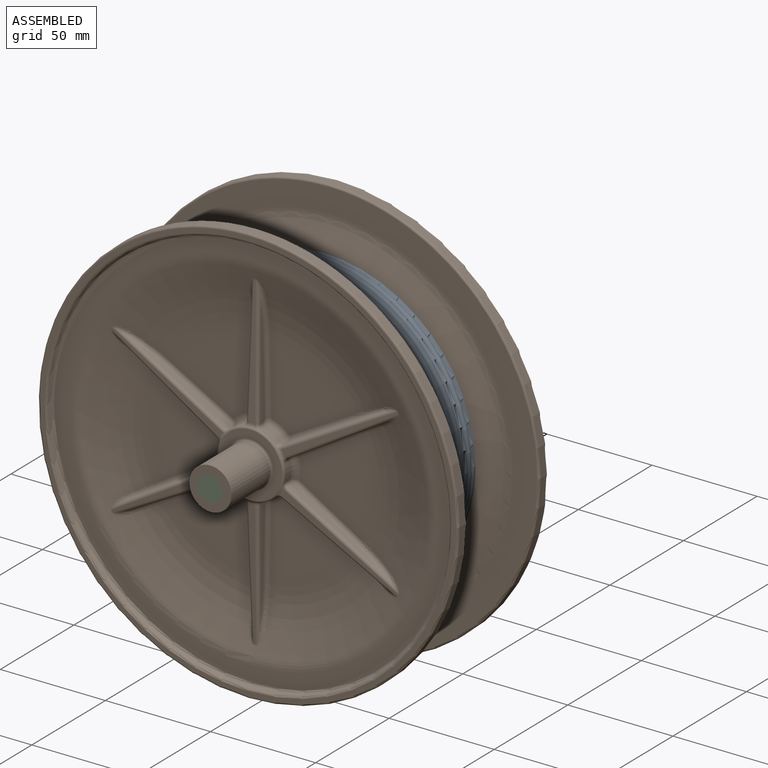
[diagram: assembled view]
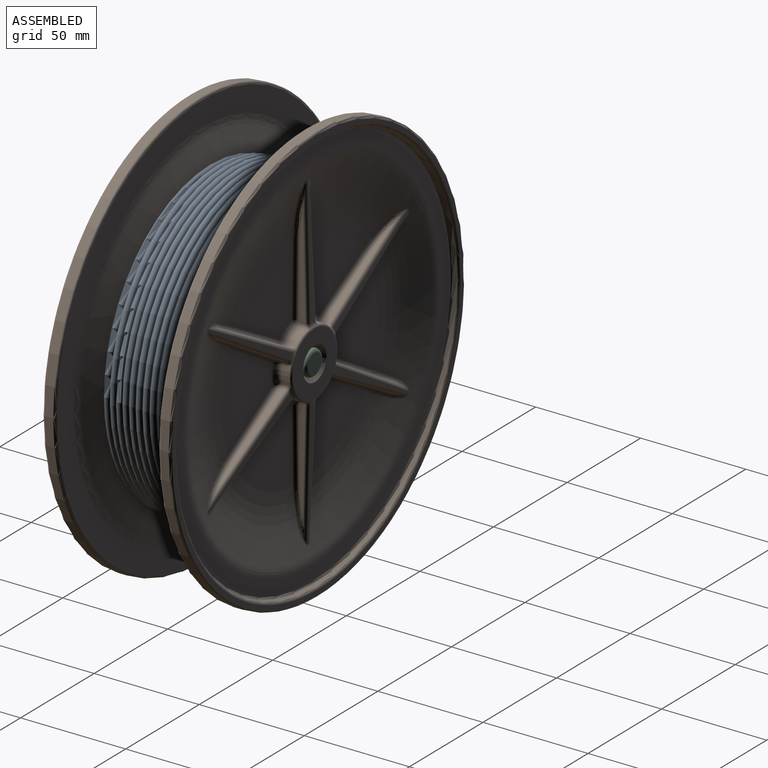
[diagram: assembled view, second angle]
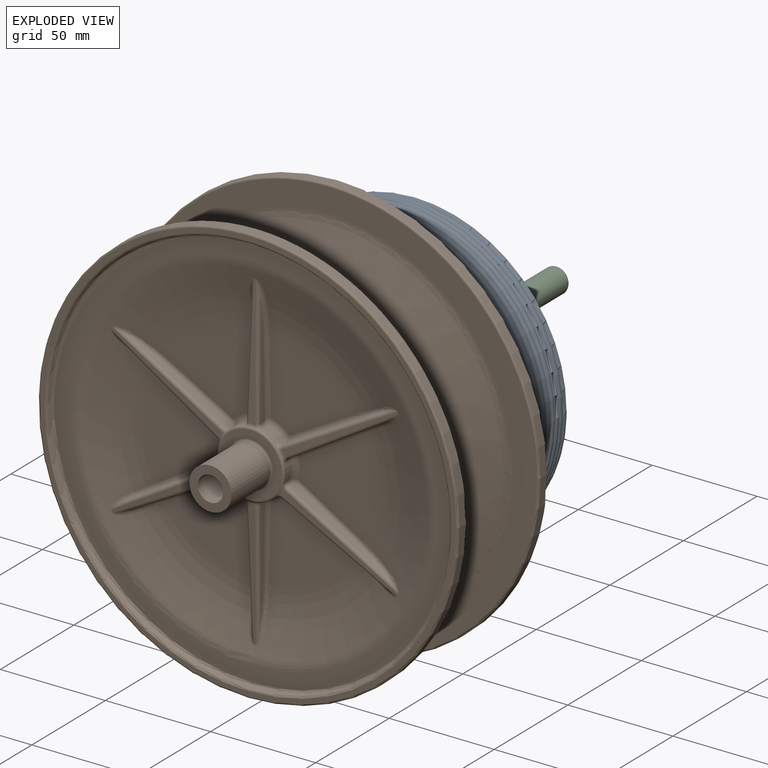
[diagram: exploded view]
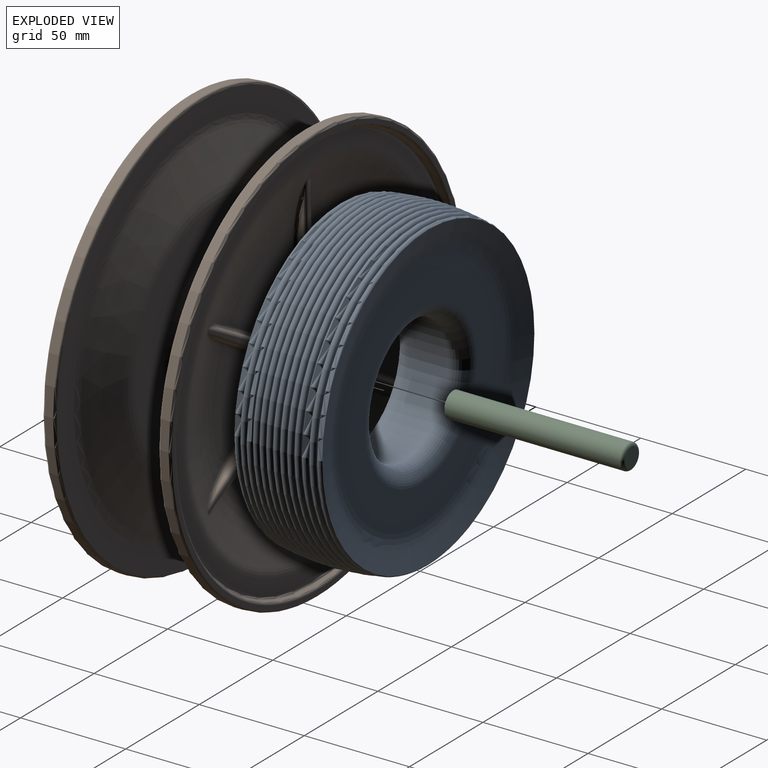
[diagram: exploded view, second angle]
ASSEMBLY  parts=3 mates=2
PART A: 22 faces, bbox 161.1x49.5x161.1 mm
  f0: torus R=70.99mm, axis (0,-1,0), area 1700.2mm2, adj f12,f14
  f1: torus R=70.99mm, axis (0,-1,0), area 1700.2mm2, adj f2,f17
  f2: torus R=71.53mm, axis (0,-1,0), area 2370.5mm2, adj f1,f3
  f3: torus R=71.97mm, axis (0,-1,0), area 2385.1mm2, adj f2,f4
  f4: torus R=72.32mm, axis (0,-1,0), area 2396.5mm2, adj f3,f5
  f5: torus R=72.57mm, axis (0,-1,0), area 2404.6mm2, adj f4,f6
  f6: torus R=72.71mm, axis (0,-1,0), area 2409.5mm2, adj f5,f7
  f7: torus R=72.76mm, axis (0,-1,0), area 2411.1mm2, adj f6,f8
  f8: torus R=72.71mm, axis (0,-1,0), area 2409.5mm2, adj f7,f9
  f9: torus R=72.57mm, axis (0,-1,0), area 2404.6mm2, adj f8,f10
  f10: torus R=72.32mm, axis (0,-1,0), area 2396.5mm2, adj f9,f11
  f11: torus R=71.97mm, axis (0,-1,0), area 2385.1mm2, adj f10,f12
  f12: torus R=71.53mm, axis (0,-1,0), area 2370.5mm2, adj f0,f11
  f13: torus R=55.98mm, axis (0,-1,0), area 2435.9mm2, adj f14,f15
  f14: cone r=62.45mm half-angle=75deg, axis (0,-1,0), area 4198.7mm2, adj f0,f13
  f15: plane 111.96x111.96mm, normal (0,-1,0), area 5308.3mm2, adj f13,f16
  f16: torus R=38mm, axis (0,-1,0), area 2598.2mm2, adj f15,f21
  f17: cone r=62.45mm half-angle=75deg, axis (0,1,0), area 4198.7mm2, adj f1,f18
  f18: torus R=55.98mm, axis (0,-1,0), area 2435.9mm2, adj f17,f19
  f19: plane 111.96x111.96mm, normal (0,1,0), area 5308.3mm2, adj f18,f20
  f20: torus R=38mm, axis (0,-1,0), area 2598.2mm2, adj f19,f21
  f21: cylinder r=30mm len=60mm, axis (0,-1,0), area 3581.4mm2, adj f16,f20
PART B: 366 faces, bbox 216.5x86.5x216.5 mm
  f0: cylinder r=16mm len=7.25mm, axis (0,-1,0), area 27.8mm2, adj f26,f123,f260,f262,f349,f351
  f1: cylinder r=16mm len=7.25mm, axis (0,-1,0), area 27.8mm2, adj f84,f123,f259,f261,f278,f280
  f2: cylinder r=16mm len=8.38mm, axis (0,-1,0), area 27.8mm2, adj f14,f123,f277,f279,f296,f298
  f3: cylinder r=16mm len=7.25mm, axis (0,-1,0), area 27.8mm2, adj f17,f123,f295,f297,f314,f316
  f4: cylinder r=16mm len=7.25mm, axis (0,-1,0), area 27.8mm2, adj f20,f123,f313,f315,f332,f334
  f5: cylinder r=16mm len=7.25mm, axis (0,-1,0), area 27.8mm2, adj f83,f121,f152,f154,f169,f171
  f6: cylinder r=16mm len=8.38mm, axis (0,-1,0), area 27.8mm2, adj f31,f121,f170,f172,f187,f189
  f7: cylinder r=16mm len=7.25mm, axis (0,-1,0), area 27.8mm2, adj f34,f121,f188,f190,f205,f207
  f8: cylinder r=16mm len=7.25mm, axis (0,-1,0), area 27.8mm2, adj f37,f121,f206,f208,f223,f225
  f9: cylinder r=16mm len=8.38mm, axis (0,-1,0), area 27.8mm2, adj f40,f121,f224,f226,f241,f243
  f10: cylinder r=16mm len=8.38mm, axis (0,-1,0), area 27.8mm2, adj f23,f123,f331,f333,f350,f352
  f11: cylinder r=16mm len=7.25mm, axis (0,-1,0), area 27.8mm2, adj f43,f121,f151,f153,f242,f244
  f12: plane 39.75x39.57mm, normal (0,1,0), area 982.6mm2, adj f13,f84,f265,f284
  f13: torus R=53.39mm, axis (0,-1,0), area 1045.1mm2, adj f12,f67,f267,f269,f286,f288
  f14: torus R=19mm, axis (0,-1,0), area 40.6mm2, adj f2,f15,f281,f300
  f15: plane 45.69x35.03mm, normal (0,1,0), area 982.6mm2, adj f14,f16,f283,f302
  f16: torus R=53.39mm, axis (0,-1,0), area 1045.1mm2, adj f15,f67,f285,f287,f304,f306
  f17: torus R=19mm, axis (0,-1,0), area 40.6mm2, adj f3,f18,f299,f318
  f18: plane 39.75x39.57mm, normal (0,1,0), area 982.6mm2, adj f17,f19,f301,f320
  f19: torus R=53.39mm, axis (0,-1,0), area 1045.1mm2, adj f18,f67,f303,f305,f322,f324
  f20: torus R=19mm, axis (0,-1,0), area 40.6mm2, adj f4,f21,f317,f336
  f21: plane 39.75x39.57mm, normal (0,1,0), area 982.6mm2, adj f20,f22,f319,f338
  f22: torus R=53.39mm, axis (0,-1,0), area 1045.1mm2, adj f21,f67,f321,f323,f340,f342
  f23: torus R=19mm, axis (0,-1,0), area 40.6mm2, adj f10,f24,f335,f354
  f24: plane 45.69x35.03mm, normal (0,1,0), area 982.6mm2, adj f23,f25,f337,f356
  f25: torus R=53.39mm, axis (0,-1,0), area 1045.1mm2, adj f24,f67,f339,f341,f358,f360
  f26: torus R=19mm, axis (0,-1,0), area 40.6mm2, adj f0,f27,f264,f353
  f27: plane 39.75x39.57mm, normal (0,1,0), area 982.6mm2, adj f26,f28,f266,f355
  f28: torus R=53.39mm, axis (0,-1,0), area 1045.1mm2, adj f27,f67,f268,f270,f357,f359
  f29: plane 45.69x35.03mm, normal (0,-1,0), area 982.6mm2, adj f30,f31,f176,f193
  f30: torus R=53.39mm, axis (0,-1,0), area 1045.1mm2, adj f29,f62,f178,f180,f195,f197
  f31: torus R=19mm, axis (0,-1,0), area 40.6mm2, adj f6,f29,f174,f191
  f32: plane 39.75x39.57mm, normal (0,-1,0), area 982.6mm2, adj f33,f34,f194,f211
  f33: torus R=53.39mm, axis (0,-1,0), area 1045.1mm2, adj f32,f62,f196,f198,f213,f215
  f34: torus R=19mm, axis (0,-1,0), area 40.6mm2, adj f7,f32,f192,f209
  f35: plane 39.75x39.57mm, normal (0,-1,0), area 982.6mm2, adj f36,f37,f212,f229
  f36: torus R=53.39mm, axis (0,-1,0), area 1045.1mm2, adj f35,f62,f214,f216,f231,f233
  f37: torus R=19mm, axis (0,-1,0), area 40.6mm2, adj f8,f35,f210,f227
  f38: plane 45.69x35.03mm, normal (0,-1,0), area 982.6mm2, adj f39,f40,f230,f247
  f39: torus R=53.39mm, axis (0,-1,0), area 1045.1mm2, adj f38,f62,f232,f234,f249,f251
  f40: torus R=19mm, axis (0,-1,0), area 40.6mm2, adj f9,f38,f228,f245
  f41: plane 39.75x39.57mm, normal (0,-1,0), area 982.6mm2, adj f42,f43,f157,f248
  f42: torus R=53.39mm, axis (0,-1,0), area 1045.1mm2, adj f41,f62,f159,f161,f250,f252
  f43: torus R=19mm, axis (0,-1,0), area 40.6mm2, adj f11,f41,f155,f246
  f44: plane 39.75x39.57mm, normal (0,-1,0), area 982.6mm2, adj f45,f83,f158,f175
  f45: torus R=53.39mm, axis (0,-1,0), area 1045.1mm2, adj f44,f62,f160,f162,f177,f179
  f46: cylinder r=30mm len=60mm, axis (0,-1,0), area 3581.4mm2, adj f69,f70
  f47: plane 111.96x111.96mm, normal (0,1,0), area 5308.3mm2, adj f48,f69
  f48: torus R=55.98mm, axis (0,-1,0), area 2435.9mm2, adj f47,f49
  f49: cone r=62.45mm half-angle=75deg, axis (0,-1,0), area 9985.5mm2, adj f48,f71
  f50: plane 198x198mm, normal (0,1,0), area 6809.5mm2, adj f71,f81
  f51: cylinder r=100mm len=200mm, axis (0,-1,0), area 2513.3mm2, adj f80,f81
  f52: cylinder r=100mm len=200mm, axis (0,-1,0), area 2513.3mm2, adj f77,f82
  f53: plane 198x198mm, normal (0,-1,0), area 6809.5mm2, adj f74,f82
  f54: cone r=62.45mm half-angle=75deg, axis (0,1,0), area 9985.5mm2, adj f55,f74
  f55: torus R=55.98mm, axis (0,-1,0), area 2435.9mm2, adj f54,f56
  f56: plane 111.96x111.96mm, normal (0,-1,0), area 5308.3mm2, adj f55,f70
  f57: cone r=95mm half-angle=20deg, axis (0,-1,0), area 1075.9mm2, adj f78,f79
  f58: plane 198x198mm, normal (0,-1,0), area 1358.1mm2, adj f79,f80
  f59: plane 20x20mm, normal (0,-1,0), area 201.1mm2, adj f60,f364
  f60: cylinder r=10mm len=26mm, axis (0,-1,0), area 1633.6mm2, adj f59,f122
  f61: plane 30x30mm, normal (0,-1,0), area 326.7mm2, adj f121,f122
  f62: cone r=71.51mm half-angle=75deg, axis (0,-1,0), area 5559.1mm2, adj f30,f33,f36,f39,f42,f45,f72,f163
  f63: plane 188.6x188.6mm, normal (0,-1,0), area 4171.5mm2, adj f72,f78
  f64: cone r=95mm half-angle=20deg, axis (0,1,0), area 1075.9mm2, adj f75,f76
  f65: plane 198x198mm, normal (0,1,0), area 1358.1mm2, adj f76,f77
  f66: plane 30x30mm, normal (0,1,0), area 505.8mm2, adj f123,f365
  f67: cone r=71.51mm half-angle=75deg, axis (0,1,0), area 5559mm2, adj f13,f16,f19,f22,f25,f28,f73,f271
  f68: plane 188.6x188.6mm, normal (0,1,0), area 4171.5mm2, adj f73,f75
  f69: torus R=38mm, axis (0,-1,0), area 2598.2mm2, adj f46,f47
  f70: torus R=38mm, axis (0,-1,0), area 2598.2mm2, adj f46,f56
  f71: torus R=87.37mm, axis (0,-1,0), area 2107.6mm2, adj f49,f50
  f72: torus R=86.97mm, axis (0,-1,0), area 2097.8mm2, adj f62,f63
  f73: torus R=86.97mm, axis (0,-1,0), area 2097.8mm2, adj f67,f68
  f74: torus R=87.37mm, axis (0,-1,0), area 2107.6mm2, adj f53,f54
  f75: torus R=94.3mm, axis (0,-1,0), area 728mm2, adj f64,f68
  f76: torus R=96.79mm, axis (0,1,0), area 738.9mm2, adj f64,f65
  f77: torus R=99mm, axis (0,1,0), area 983.4mm2, adj f52,f65
  f78: torus R=94.3mm, axis (0,-1,0), area 728mm2, adj f57,f63
  f79: torus R=96.79mm, axis (0,-1,0), area 738.9mm2, adj f57,f58
  f80: torus R=99mm, axis (0,-1,0), area 983.4mm2, adj f51,f58
  f81: torus R=99mm, axis (0,-1,0), area 983.4mm2, adj f50,f51
  f82: torus R=99mm, axis (0,-1,0), area 983.4mm2, adj f52,f53
  f83: torus R=19mm, axis (0,-1,0), area 40.6mm2, adj f5,f44,f156,f173
  f84: torus R=19mm, axis (0,-1,0), area 40.6mm2, adj f1,f12,f263,f282
  f85: plane 48.9x2.95mm, normal (-1,0,0.02), area 96.7mm2, adj f147,f153,f155,f157,f159
  f86: plane 48.89x2.95mm, normal (1,0,0.02), area 96.7mm2, adj f146,f154,f156,f158,f160
  f87: plane 61.22x2.96mm, normal (0,-1,0.03), area 115.2mm2, adj f146,f147,f148,f165
  f88: plane 41.92x25.19mm, normal (-0.52,0,-0.86), area 96.7mm2, adj f137,f243,f245,f247,f249
  f89: plane 42.77x23.71mm, normal (0.48,0,0.87), area 96.7mm2, adj f136,f244,f246,f248,f250
  f90: plane 53.96x32.24mm, normal (-0.03,-1,0.02), area 115.2mm2, adj f136,f137,f238,f255
  f91: plane 42.78x23.72mm, normal (0.48,0,-0.87), area 96.7mm2, adj f139,f225,f227,f229,f231
  f92: plane 41.92x25.19mm, normal (-0.52,0,0.86), area 96.7mm2, adj f138,f226,f228,f230,f232
  f93: plane 53.96x32.24mm, normal (-0.03,-1,-0.02), area 115.2mm2, adj f138,f139,f220,f237
  f94: plane 48.9x2.95mm, normal (1,0,-0.02), area 96.7mm2, adj f141,f207,f209,f211,f213
  f95: plane 48.89x2.95mm, normal (-1,0,-0.02), area 96.7mm2, adj f140,f208,f210,f212,f214
  f96: plane 61.22x2.96mm, normal (0,-1,-0.03), area 115.2mm2, adj f140,f141,f202,f219
  f97: plane 41.92x25.19mm, normal (0.52,0,0.86), area 96.7mm2, adj f143,f189,f191,f193,f195
  f98: plane 42.77x23.71mm, normal (-0.48,0,-0.87), area 96.7mm2, adj f142,f190,f192,f194,f196
  f99: plane 53.96x32.24mm, normal (0.03,-1,-0.02), area 115.2mm2, adj f142,f143,f184,f201
  f100: plane 42.78x23.72mm, normal (-0.48,0,0.87), area 96.7mm2, adj f145,f171,f173,f175,f177
  f101: plane 41.92x25.19mm, normal (0.52,0,-0.86), area 96.7mm2, adj f144,f172,f174,f176,f178
  f102: plane 53.96x32.24mm, normal (0.03,-1,0.02), area 115.2mm2, adj f144,f145,f166,f183
  f103: plane 48.89x2.95mm, normal (-1,0,0.02), area 96.7mm2, adj f135,f261,f263,f265,f267
  f104: plane 48.9x2.95mm, normal (1,0,0.02), area 96.7mm2, adj f134,f262,f264,f266,f268
  f105: plane 61.22x2.96mm, normal (0,1,0.03), area 115.2mm2, adj f134,f135,f256,f273
  f106: plane 42.77x23.71mm, normal (-0.48,0,0.87), area 96.7mm2, adj f125,f351,f353,f355,f357
  f107: plane 41.92x25.19mm, normal (0.52,0,-0.86), area 96.7mm2, adj f124,f352,f354,f356,f358
  f108: plane 53.96x32.24mm, normal (0.03,1,0.02), area 115.2mm2, adj f124,f125,f346,f363
  f109: plane 41.92x25.19mm, normal (0.52,0,0.86), area 96.7mm2, adj f127,f333,f335,f337,f339
  f110: plane 42.78x23.72mm, normal (-0.48,0,-0.87), area 96.7mm2, adj f126,f334,f336,f338,f340
  f111: plane 53.96x32.24mm, normal (0.03,1,-0.02), area 115.2mm2, adj f126,f127,f328,f345
  f112: plane 48.89x2.95mm, normal (1,0,-0.02), area 96.7mm2, adj f129,f315,f317,f319,f321
  f113: plane 48.9x2.95mm, normal (-1,0,-0.02), area 96.7mm2, adj f128,f316,f318,f320,f322
  f114: plane 61.22x2.96mm, normal (0,1,-0.03), area 115.2mm2, adj f128,f129,f310,f327
  f115: plane 42.77x23.71mm, normal (0.48,0,-0.87), area 96.7mm2, adj f131,f297,f299,f301,f303
  f116: plane 41.92x25.19mm, normal (-0.52,0,0.86), area 96.7mm2, adj f130,f298,f300,f302,f304
  f117: plane 53.96x32.24mm, normal (-0.03,1,-0.02), area 115.2mm2, adj f130,f131,f292,f309
  f118: plane 41.92x25.19mm, normal (-0.52,0,-0.86), area 96.7mm2, adj f133,f279,f281,f283,f285
  f119: plane 42.78x23.72mm, normal (0.48,0,0.87), area 96.7mm2, adj f132,f280,f282,f284,f286
  f120: plane 53.96x32.24mm, normal (-0.03,1,0.02), area 115.2mm2, adj f132,f133,f274,f291
  f121: torus R=15mm, axis (0,-1,0), area 126.3mm2, adj f5,f6,f7,f8,f9,f11,f61,f148
  f122: torus R=11mm, axis (0,-1,0), area 102.3mm2, adj f60,f61
  f123: torus R=15mm, axis (0,-1,0), area 126.3mm2, adj f0,f1,f2,f3,f4,f10,f66,f256
  f124: cylinder r=1.5mm len=53.21mm, axis (0.86,-0.03,0.51), area 133.8mm2, adj f107,f108,f348,f350,f360,f362
  f125: cylinder r=1.5mm len=54.32mm, axis (-0.87,0.03,-0.48), area 133.8mm2, adj f106,f108,f347,f349,f359,f361
  f126: cylinder r=1.5mm len=54.32mm, axis (0.87,-0.03,-0.48), area 133.8mm2, adj f110,f111,f330,f332,f342,f344
  f127: cylinder r=1.5mm len=53.21mm, axis (-0.86,0.03,0.51), area 133.8mm2, adj f109,f111,f329,f331,f341,f343
  f128: cylinder r=1.5mm len=61.25mm, axis (0.02,-0.03,-1), area 133.8mm2, adj f113,f114,f312,f314,f324,f326
  f129: cylinder r=1.5mm len=61.25mm, axis (0.02,0.03,1), area 133.8mm2, adj f112,f114,f311,f313,f323,f325
  f130: cylinder r=1.5mm len=53.21mm, axis (-0.86,-0.03,-0.51), area 133.8mm2, adj f116,f117,f294,f296,f306,f308
  f131: cylinder r=1.5mm len=54.32mm, axis (0.87,0.03,0.48), area 133.8mm2, adj f115,f117,f293,f295,f305,f307
  f132: cylinder r=1.5mm len=54.32mm, axis (-0.87,-0.03,0.48), area 133.8mm2, adj f119,f120,f276,f278,f288,f290
  f133: cylinder r=1.5mm len=53.21mm, axis (0.86,0.03,-0.51), area 133.8mm2, adj f118,f120,f275,f277,f287,f289
  f134: cylinder r=1.5mm len=61.25mm, axis (-0.02,-0.03,1), area 133.8mm2, adj f104,f105,f258,f260,f270,f272
  f135: cylinder r=1.5mm len=61.25mm, axis (-0.02,0.03,-1), area 133.8mm2, adj f103,f105,f257,f259,f269,f271
  f136: cylinder r=1.5mm len=54.32mm, axis (-0.87,0.03,0.48), area 133.8mm2, adj f89,f90,f240,f242,f252,f254
  f137: cylinder r=1.5mm len=53.21mm, axis (0.86,-0.03,-0.51), area 133.8mm2, adj f88,f90,f239,f241,f251,f253
  f138: cylinder r=1.5mm len=53.21mm, axis (-0.86,0.03,-0.51), area 133.8mm2, adj f92,f93,f222,f224,f234,f236
  f139: cylinder r=1.5mm len=54.32mm, axis (0.87,-0.03,0.48), area 133.8mm2, adj f91,f93,f221,f223,f233,f235
  f140: cylinder r=1.5mm len=61.25mm, axis (0.02,0.03,-1), area 133.8mm2, adj f95,f96,f204,f206,f216,f218
  f141: cylinder r=1.5mm len=61.25mm, axis (0.02,-0.03,1), area 133.8mm2, adj f94,f96,f203,f205,f215,f217
  f142: cylinder r=1.5mm len=54.32mm, axis (0.87,0.03,-0.48), area 133.8mm2, adj f98,f99,f186,f188,f198,f200
  f143: cylinder r=1.5mm len=53.21mm, axis (-0.86,-0.03,0.51), area 133.8mm2, adj f97,f99,f185,f187,f197,f199
  f144: cylinder r=1.5mm len=53.21mm, axis (0.86,0.03,0.51), area 133.8mm2, adj f101,f102,f168,f170,f180,f182
  f145: cylinder r=1.5mm len=54.32mm, axis (-0.87,-0.03,-0.48), area 133.8mm2, adj f100,f102,f167,f169,f179,f181
  f146: cylinder r=1.5mm len=61.25mm, axis (-0.02,0.03,1), area 133.8mm2, adj f86,f87,f150,f152,f162,f164
  f147: cylinder r=1.5mm len=61.25mm, axis (-0.02,-0.03,-1), area 133.8mm2, adj f85,f87,f149,f151,f161,f163
  f148: bspline ~5.51x1.74mm, area 4.7mm2, adj f87,f121,f149,f150
  f149: bspline ~3.63x1.97mm, area 4mm2, adj f121,f147,f148,f151
  f150: bspline ~3.63x1.97mm, area 4mm2, adj f121,f146,f148,f152
  f151: bspline ~2.57x1.99mm, area 2.7mm2, adj f11,f147,f149,f153
  f152: bspline ~2.6x2mm, area 2.7mm2, adj f5,f146,f150,f154
  f153: cylinder r=2mm len=1.95mm, axis (0,-1,0), area 5mm2, adj f11,f85,f151,f155
  f154: cylinder r=2mm len=1.95mm, axis (0,-1,0), area 5mm2, adj f5,f86,f152,f156
  f155: bspline ~3.65x3.22mm, area 9.6mm2, adj f43,f85,f153,f157
  f156: bspline ~3.7x3.65mm, area 9.6mm2, adj f83,f86,f154,f158
  f157: cylinder r=2mm len=34.91mm, axis (-0.02,0,-1), area 109.6mm2, adj f41,f85,f155,f159
  f158: cylinder r=2mm len=34.91mm, axis (-0.02,0,1), area 109.6mm2, adj f44,f86,f156,f160
  f159: bspline ~29.05x5.1mm, area 42mm2, adj f42,f85,f157,f161
  f160: bspline ~23.22x3.6mm, area 42mm2, adj f45,f86,f158,f162
  f161: bspline ~12.11x3.31mm, area 13.7mm2, adj f42,f147,f159,f163
  f162: bspline ~10.99x3.2mm, area 13.7mm2, adj f45,f146,f160,f164
  f163: bspline ~8.68x3.58mm, area 13.5mm2, adj f62,f147,f161,f165
  f164: bspline ~9.4x3.84mm, area 13.5mm2, adj f62,f146,f162,f165
  f165: bspline ~15.69x0.91mm, area 0.5mm2, adj f62,f87,f163,f164
  f166: bspline ~5.31x3.75mm, area 4.7mm2, adj f102,f121,f167,f168
  f167: bspline ~2.99x2.55mm, area 4mm2, adj f121,f145,f166,f169
  f168: bspline ~3.66x2.43mm, area 4mm2, adj f121,f144,f166,f170
  f169: bspline ~2.57x2.56mm, area 2.7mm2, adj f5,f145,f167,f171
  f170: bspline ~2.6x2.45mm, area 2.7mm2, adj f6,f144,f168,f172
  f171: cylinder r=2mm len=2.36mm, axis (0,-1,0), area 5mm2, adj f5,f100,f169,f173
  f172: cylinder r=2mm len=2.2mm, axis (0,-1,0), area 5mm2, adj f6,f101,f170,f174
  f173: bspline ~3.89x3.7mm, area 9.6mm2, adj f83,f100,f171,f175
  f174: bspline ~3.84x3.7mm, area 9.6mm2, adj f31,f101,f172,f176
  f175: cylinder r=2mm len=31.47mm, axis (-0.87,0,-0.48), area 109.6mm2, adj f44,f100,f173,f177
  f176: cylinder r=2mm len=30.93mm, axis (0.86,0,0.52), area 109.6mm2, adj f29,f101,f174,f178
  f177: bspline ~21.13x12.96mm, area 42mm2, adj f45,f100,f175,f179
  f178: bspline ~20.92x13.64mm, area 42mm2, adj f30,f101,f176,f180
  f179: bspline ~10.94x7.56mm, area 13.7mm2, adj f45,f145,f177,f181
  f180: bspline ~10.31x7.01mm, area 13.7mm2, adj f30,f144,f178,f182
  f181: bspline ~10.35x4.52mm, area 13.5mm2, adj f62,f145,f179,f183
  f182: bspline ~7.73x7.49mm, area 13.5mm2, adj f62,f144,f180,f183
  f183: bspline ~1x0.92mm, area 0.5mm2, adj f62,f102,f181,f182
  f184: bspline ~5.23x3.98mm, area 4.7mm2, adj f99,f121,f185,f186
  f185: bspline ~3.66x2.43mm, area 4mm2, adj f121,f143,f184,f187
  f186: bspline ~2.99x2.55mm, area 4mm2, adj f121,f142,f184,f188
  f187: bspline ~2.57x2.44mm, area 2.7mm2, adj f6,f143,f185,f189
  f188: bspline ~2.6x2.57mm, area 2.7mm2, adj f7,f142,f186,f190
  f189: cylinder r=2mm len=2.2mm, axis (0,-1,0), area 5mm2, adj f6,f97,f187,f191
  f190: cylinder r=2mm len=2.36mm, axis (0,-1,0), area 5mm2, adj f7,f98,f188,f192
  f191: bspline ~3.84x3.7mm, area 9.6mm2, adj f31,f97,f189,f193
  f192: bspline ~3.89x3.7mm, area 9.6mm2, adj f34,f98,f190,f194
  f193: cylinder r=2mm len=30.93mm, axis (-0.86,0,0.52), area 109.6mm2, adj f29,f97,f191,f195
  f194: cylinder r=2mm len=31.47mm, axis (0.87,0,-0.48), area 109.6mm2, adj f32,f98,f192,f196
  f195: bspline ~25.93x16.64mm, area 42mm2, adj f30,f97,f193,f197
  f196: bspline ~21.24x13.02mm, area 42mm2, adj f33,f98,f194,f198
  f197: bspline ~11.17x7.64mm, area 13.7mm2, adj f30,f143,f195,f199
  f198: bspline ~9.97x7.19mm, area 13.7mm2, adj f33,f142,f196,f200
  f199: bspline ~8.3x8.13mm, area 13.5mm2, adj f62,f143,f197,f201
  f200: bspline ~9.48x4.08mm, area 13.5mm2, adj f62,f142,f198,f201
  f201: bspline ~1x0.92mm, area 0.5mm2, adj f62,f99,f199,f200
  f202: bspline ~5.51x1.74mm, area 4.7mm2, adj f96,f121,f203,f204
  f203: bspline ~3.63x1.97mm, area 4mm2, adj f121,f141,f202,f205
  f204: bspline ~3.63x1.97mm, area 4mm2, adj f121,f140,f202,f206
  f205: bspline ~2.57x1.99mm, area 2.7mm2, adj f7,f141,f203,f207
  f206: bspline ~2.6x2mm, area 2.7mm2, adj f8,f140,f204,f208
  f207: cylinder r=2mm len=1.95mm, axis (0,-1,0), area 5mm2, adj f7,f94,f205,f209
  f208: cylinder r=2mm len=1.95mm, axis (0,-1,0), area 5mm2, adj f8,f95,f206,f210
  f209: bspline ~3.65x3.22mm, area 9.6mm2, adj f34,f94,f207,f211
  f210: bspline ~3.7x3.65mm, area 9.6mm2, adj f37,f95,f208,f212
  f211: cylinder r=2mm len=34.91mm, axis (0.02,0,1), area 109.6mm2, adj f32,f94,f209,f213
  f212: cylinder r=2mm len=34.91mm, axis (0.02,0,-1), area 109.6mm2, adj f35,f95,f210,f214
  f213: bspline ~29.05x5.1mm, area 42mm2, adj f33,f94,f211,f215
  f214: bspline ~23.22x3.6mm, area 42mm2, adj f36,f95,f212,f216
  f215: bspline ~12.11x3.31mm, area 13.7mm2, adj f33,f141,f213,f217
  f216: bspline ~10.99x3.2mm, area 13.7mm2, adj f36,f140,f214,f218
  f217: bspline ~8.68x3.58mm, area 13.5mm2, adj f62,f141,f215,f219
  f218: bspline ~9.4x3.84mm, area 13.5mm2, adj f62,f140,f216,f219
  f219: bspline ~15.69x0.91mm, area 0.5mm2, adj f62,f96,f217,f218
  f220: bspline ~5.31x3.75mm, area 4.7mm2, adj f93,f121,f221,f222
  f221: bspline ~2.99x2.55mm, area 4mm2, adj f121,f139,f220,f223
  f222: bspline ~3.66x2.43mm, area 4mm2, adj f121,f138,f220,f224
  f223: bspline ~2.57x2.56mm, area 2.7mm2, adj f8,f139,f221,f225
  f224: bspline ~2.6x2.45mm, area 2.7mm2, adj f9,f138,f222,f226
  f225: cylinder r=2mm len=2.36mm, axis (0,-1,0), area 5mm2, adj f8,f91,f223,f227
  f226: cylinder r=2mm len=2.2mm, axis (0,-1,0), area 5mm2, adj f9,f92,f224,f228
  f227: bspline ~3.89x3.7mm, area 9.6mm2, adj f37,f91,f225,f229
  f228: bspline ~3.84x3.7mm, area 9.6mm2, adj f40,f92,f226,f230
  f229: cylinder r=2mm len=31.47mm, axis (0.87,0,0.48), area 109.6mm2, adj f35,f91,f227,f231
  f230: cylinder r=2mm len=30.93mm, axis (-0.86,0,-0.52), area 109.6mm2, adj f38,f92,f228,f232
  f231: bspline ~21.13x12.96mm, area 42mm2, adj f36,f91,f229,f233
  f232: bspline ~20.92x13.64mm, area 42mm2, adj f39,f92,f230,f234
  f233: bspline ~10.94x7.56mm, area 13.7mm2, adj f36,f139,f231,f235
  f234: bspline ~10.31x7.01mm, area 13.7mm2, adj f39,f138,f232,f236
  f235: bspline ~10.35x4.52mm, area 13.5mm2, adj f62,f139,f233,f237
  f236: bspline ~7.73x7.49mm, area 13.5mm2, adj f62,f138,f234,f237
  f237: bspline ~1x0.92mm, area 0.5mm2, adj f62,f93,f235,f236
  f238: bspline ~5.23x3.98mm, area 4.7mm2, adj f90,f121,f239,f240
  f239: bspline ~3.66x2.43mm, area 4mm2, adj f121,f137,f238,f241
  f240: bspline ~2.99x2.55mm, area 4mm2, adj f121,f136,f238,f242
  f241: bspline ~2.57x2.44mm, area 2.7mm2, adj f9,f137,f239,f243
  f242: bspline ~2.57x2.03mm, area 2.7mm2, adj f11,f136,f240,f244
  f243: cylinder r=2mm len=2.2mm, axis (0,-1,0), area 5mm2, adj f9,f88,f241,f245
  f244: cylinder r=2mm len=2.36mm, axis (0,-1,0), area 5mm2, adj f11,f89,f242,f246
  f245: bspline ~3.84x3.7mm, area 9.6mm2, adj f40,f88,f243,f247
  f246: bspline ~3.89x3.7mm, area 9.6mm2, adj f43,f89,f244,f248
  f247: cylinder r=2mm len=30.93mm, axis (0.86,0,-0.52), area 109.6mm2, adj f38,f88,f245,f249
  f248: cylinder r=2mm len=31.47mm, axis (-0.87,0,0.48), area 109.6mm2, adj f41,f89,f246,f250
  f249: bspline ~25.93x16.64mm, area 42mm2, adj f39,f88,f247,f251
  f250: bspline ~21.24x13.02mm, area 42mm2, adj f42,f89,f248,f252
  f251: bspline ~11.17x7.64mm, area 13.7mm2, adj f39,f137,f249,f253
  f252: bspline ~9.97x7.19mm, area 13.7mm2, adj f42,f136,f250,f254
  f253: bspline ~8.3x8.13mm, area 13.5mm2, adj f62,f137,f251,f255
  f254: bspline ~9.55x4.08mm, area 13.5mm2, adj f62,f136,f252,f255
  f255: bspline ~1x0.92mm, area 0.5mm2, adj f62,f90,f253,f254
  f256: bspline ~5.51x1.74mm, area 4.7mm2, adj f105,f123,f257,f258
  f257: bspline ~3.63x1.97mm, area 4mm2, adj f123,f135,f256,f259
  f258: bspline ~3.63x1.97mm, area 4mm2, adj f123,f134,f256,f260
  f259: bspline ~2.57x1.99mm, area 2.7mm2, adj f1,f135,f257,f261
  f260: bspline ~2.6x2mm, area 2.7mm2, adj f0,f134,f258,f262
  f261: cylinder r=2mm len=1.95mm, axis (0,-1,0), area 5mm2, adj f1,f103,f259,f263
  f262: cylinder r=2mm len=1.95mm, axis (0,-1,0), area 5mm2, adj f0,f104,f260,f264
  f263: bspline ~3.7x3.65mm, area 9.6mm2, adj f84,f103,f261,f265
  f264: bspline ~3.7x3.65mm, area 9.6mm2, adj f26,f104,f262,f266
  f265: cylinder r=2mm len=34.91mm, axis (0.02,0,1), area 109.6mm2, adj f12,f103,f263,f267
  f266: cylinder r=2mm len=34.91mm, axis (0.02,0,-1), area 109.6mm2, adj f27,f104,f264,f268
  f267: bspline ~23.22x3.6mm, area 42mm2, adj f13,f103,f265,f269
  f268: bspline ~29.05x5.1mm, area 42mm2, adj f28,f104,f266,f270
  f269: bspline ~10.99x3.2mm, area 13.7mm2, adj f13,f135,f267,f271
  f270: bspline ~12.11x3.31mm, area 13.7mm2, adj f28,f134,f268,f272
  f271: bspline ~8.84x3.6mm, area 13.5mm2, adj f67,f135,f269,f273
  f272: bspline ~10.36x3.92mm, area 13.5mm2, adj f67,f134,f270,f273
  f273: bspline ~15.69x0.91mm, area 0.5mm2, adj f67,f105,f271,f272
  f274: bspline ~5.23x3.98mm, area 4.7mm2, adj f120,f123,f275,f276
  f275: bspline ~3.66x2.43mm, area 4mm2, adj f123,f133,f274,f277
  f276: bspline ~2.99x2.55mm, area 4mm2, adj f123,f132,f274,f278
  f277: bspline ~2.57x2.44mm, area 2.7mm2, adj f2,f133,f275,f279
  f278: bspline ~2.6x2.57mm, area 2.7mm2, adj f1,f132,f276,f280
  f279: cylinder r=2mm len=2.2mm, axis (0,-1,0), area 5mm2, adj f2,f118,f277,f281
  f280: cylinder r=2mm len=2.36mm, axis (0,-1,0), area 5mm2, adj f1,f119,f278,f282
  f281: bspline ~3.84x3.7mm, area 9.6mm2, adj f14,f118,f279,f283
  f282: bspline ~3.89x3.7mm, area 9.6mm2, adj f84,f119,f280,f284
  f283: cylinder r=2mm len=30.93mm, axis (-0.86,0,0.52), area 109.6mm2, adj f15,f118,f281,f285
  f284: cylinder r=2mm len=31.47mm, axis (0.87,0,-0.48), area 109.6mm2, adj f12,f119,f282,f286
  f285: bspline ~20.92x13.64mm, area 42mm2, adj f16,f118,f283,f287
  f286: bspline ~21.13x12.96mm, area 42mm2, adj f13,f119,f284,f288
  f287: bspline ~10.31x7.01mm, area 13.7mm2, adj f16,f133,f285,f289
  f288: bspline ~10.94x7.56mm, area 13.7mm2, adj f13,f132,f286,f290
  f289: bspline ~7.25x7.02mm, area 13.5mm2, adj f67,f133,f287,f291
  f290: bspline ~10.35x4.52mm, area 13.5mm2, adj f67,f132,f288,f291
  f291: bspline ~1x0.92mm, area 0.5mm2, adj f67,f120,f289,f290
  f292: bspline ~5.31x3.75mm, area 4.7mm2, adj f117,f123,f293,f294
  f293: bspline ~3.2x2.96mm, area 4mm2, adj f123,f131,f292,f295
  f294: bspline ~3.66x2.43mm, area 4mm2, adj f123,f130,f292,f296
  f295: bspline ~2.57x2.56mm, area 2.7mm2, adj f3,f131,f293,f297
  f296: bspline ~2.6x2.45mm, area 2.7mm2, adj f2,f130,f294,f298
  f297: cylinder r=2mm len=2.36mm, axis (0,-1,0), area 5mm2, adj f3,f115,f295,f299
  f298: cylinder r=2mm len=2.2mm, axis (0,-1,0), area 5mm2, adj f2,f116,f296,f300
  f299: bspline ~3.89x3.7mm, area 9.6mm2, adj f17,f115,f297,f301
  f300: bspline ~3.84x3.7mm, area 9.6mm2, adj f14,f116,f298,f302
  f301: cylinder r=2mm len=31.47mm, axis (-0.87,0,-0.48), area 109.6mm2, adj f18,f115,f299,f303
  f302: cylinder r=2mm len=30.93mm, axis (0.86,0,0.52), area 109.6mm2, adj f15,f116,f300,f304
  f303: bspline ~21.24x13.02mm, area 42mm2, adj f19,f115,f301,f305
  f304: bspline ~25.93x16.64mm, area 42mm2, adj f16,f116,f302,f306
  f305: bspline ~9.25x6.88mm, area 13.7mm2, adj f19,f131,f303,f307
  f306: bspline ~11.17x7.64mm, area 13.7mm2, adj f16,f130,f304,f308
  f307: bspline ~8.96x3.82mm, area 13.5mm2, adj f67,f131,f305,f309
  f308: bspline ~8.3x8.28mm, area 13.5mm2, adj f67,f130,f306,f309
  f309: bspline ~1x0.92mm, area 0.5mm2, adj f67,f117,f307,f308
  f310: bspline ~5.51x1.74mm, area 4.7mm2, adj f114,f123,f311,f312
  f311: bspline ~3.63x1.97mm, area 4mm2, adj f123,f129,f310,f313
  f312: bspline ~3.63x1.97mm, area 4mm2, adj f123,f128,f310,f314
  f313: bspline ~2.57x1.99mm, area 2.7mm2, adj f4,f129,f311,f315
  f314: bspline ~2.6x2mm, area 2.7mm2, adj f3,f128,f312,f316
  f315: cylinder r=2mm len=1.95mm, axis (0,-1,0), area 5mm2, adj f4,f112,f313,f317
  f316: cylinder r=2mm len=1.95mm, axis (0,-1,0), area 5mm2, adj f3,f113,f314,f318
  f317: bspline ~3.7x3.65mm, area 9.6mm2, adj f20,f112,f315,f319
  f318: bspline ~3.7x3.65mm, area 9.6mm2, adj f17,f113,f316,f320
  f319: cylinder r=2mm len=34.91mm, axis (-0.02,0,-1), area 109.6mm2, adj f21,f112,f317,f321
  f320: cylinder r=2mm len=34.91mm, axis (-0.02,0,1), area 109.6mm2, adj f18,f113,f318,f322
  f321: bspline ~23.22x3.6mm, area 42mm2, adj f22,f112,f319,f323
  f322: bspline ~29.05x5.1mm, area 42mm2, adj f19,f113,f320,f324
  f323: bspline ~10.99x3.2mm, area 13.7mm2, adj f22,f129,f321,f325
  f324: bspline ~12.11x3.31mm, area 13.7mm2, adj f19,f128,f322,f326
  f325: bspline ~8.84x3.6mm, area 13.5mm2, adj f67,f129,f323,f327
  f326: bspline ~10.36x3.92mm, area 13.5mm2, adj f67,f128,f324,f327
  f327: bspline ~15.69x0.91mm, area 0.5mm2, adj f67,f114,f325,f326
  f328: bspline ~5.23x3.98mm, area 4.7mm2, adj f111,f123,f329,f330
  f329: bspline ~3.66x2.43mm, area 4mm2, adj f123,f127,f328,f331
  f330: bspline ~2.99x2.55mm, area 4mm2, adj f123,f126,f328,f332
  f331: bspline ~2.57x2.44mm, area 2.7mm2, adj f10,f127,f329,f333
  f332: bspline ~2.6x2.57mm, area 2.7mm2, adj f4,f126,f330,f334
  f333: cylinder r=2mm len=2.2mm, axis (0,-1,0), area 5mm2, adj f10,f109,f331,f335
  f334: cylinder r=2mm len=2.36mm, axis (0,-1,0), area 5mm2, adj f4,f110,f332,f336
  f335: bspline ~3.84x3.7mm, area 9.6mm2, adj f23,f109,f333,f337
  f336: bspline ~3.89x3.7mm, area 9.6mm2, adj f20,f110,f334,f338
  f337: cylinder r=2mm len=30.93mm, axis (0.86,0,-0.52), area 109.6mm2, adj f24,f109,f335,f339
  f338: cylinder r=2mm len=31.47mm, axis (-0.87,0,0.48), area 109.6mm2, adj f21,f110,f336,f340
  f339: bspline ~20.92x13.64mm, area 42mm2, adj f25,f109,f337,f341
  f340: bspline ~21.13x12.96mm, area 42mm2, adj f22,f110,f338,f342
  f341: bspline ~10.31x7.01mm, area 13.7mm2, adj f25,f127,f339,f343
  f342: bspline ~10.94x7.56mm, area 13.7mm2, adj f22,f126,f340,f344
  f343: bspline ~7.25x7.02mm, area 13.5mm2, adj f67,f127,f341,f345
  f344: bspline ~10.42x4.52mm, area 13.5mm2, adj f67,f126,f342,f345
  f345: bspline ~1x0.92mm, area 0.5mm2, adj f67,f111,f343,f344
  f346: bspline ~5.31x3.75mm, area 4.7mm2, adj f108,f123,f347,f348
  f347: bspline ~3.2x2.96mm, area 4mm2, adj f123,f125,f346,f349
  f348: bspline ~3.66x2.43mm, area 4mm2, adj f123,f124,f346,f350
  f349: bspline ~2.57x2.56mm, area 2.7mm2, adj f0,f125,f347,f351
  f350: bspline ~2.6x2.45mm, area 2.7mm2, adj f10,f124,f348,f352
  f351: cylinder r=2mm len=2.36mm, axis (0,-1,0), area 5mm2, adj f0,f106,f349,f353
  f352: cylinder r=2mm len=2.2mm, axis (0,-1,0), area 5mm2, adj f10,f107,f350,f354
  f353: bspline ~3.89x3.7mm, area 9.6mm2, adj f26,f106,f351,f355
  f354: bspline ~3.84x3.7mm, area 9.6mm2, adj f23,f107,f352,f356
  f355: cylinder r=2mm len=31.47mm, axis (0.87,0,0.48), area 109.6mm2, adj f27,f106,f353,f357
  f356: cylinder r=2mm len=30.93mm, axis (-0.86,0,-0.52), area 109.6mm2, adj f24,f107,f354,f358
  f357: bspline ~21.24x13.02mm, area 42mm2, adj f28,f106,f355,f359
  f358: bspline ~25.93x16.64mm, area 42mm2, adj f25,f107,f356,f360
  f359: bspline ~9.97x7.19mm, area 13.7mm2, adj f28,f125,f357,f361
  f360: bspline ~11.17x7.64mm, area 13.7mm2, adj f25,f124,f358,f362
  f361: bspline ~8.96x3.82mm, area 13.5mm2, adj f67,f125,f359,f363
  f362: bspline ~8.3x8.28mm, area 13.5mm2, adj f67,f124,f360,f363
  f363: bspline ~1x0.92mm, area 0.5mm2, adj f67,f108,f361,f362
  f364: cylinder r=6mm len=83mm, axis (0,-1,0), area 3129mm2, adj f59,f365
  f365: cone r=8mm half-angle=45deg, axis (0,1,0), area 124.4mm2, adj f66,f364
PART C: 4 faces, bbox 13x85x13 mm
  f0: plane 9x9mm, normal (0,1,0), area 63.6mm2, adj f3
  f1: cylinder r=6mm len=83.5mm, axis (0,-1,0), area 3147.9mm2, adj f2,f3
  f2: plane 12x12mm, normal (0,-1,0), area 113.1mm2, adj f1
  f3: torus R=4.5mm, axis (0,-1,0), area 80.8mm2, adj f0,f1
PLACE A rot(axis=(1,0,0),180deg) t=(0,112,0)mm
PLACE B at identity fixed
PLACE C at identity
MATE fastened C.f1 <-> B.f0  axis (0,-1,0) through (0,0,0)mm
MATE fastened A.f0 <-> B.f0  axis (0,1,0) through (0,56,0)mm
